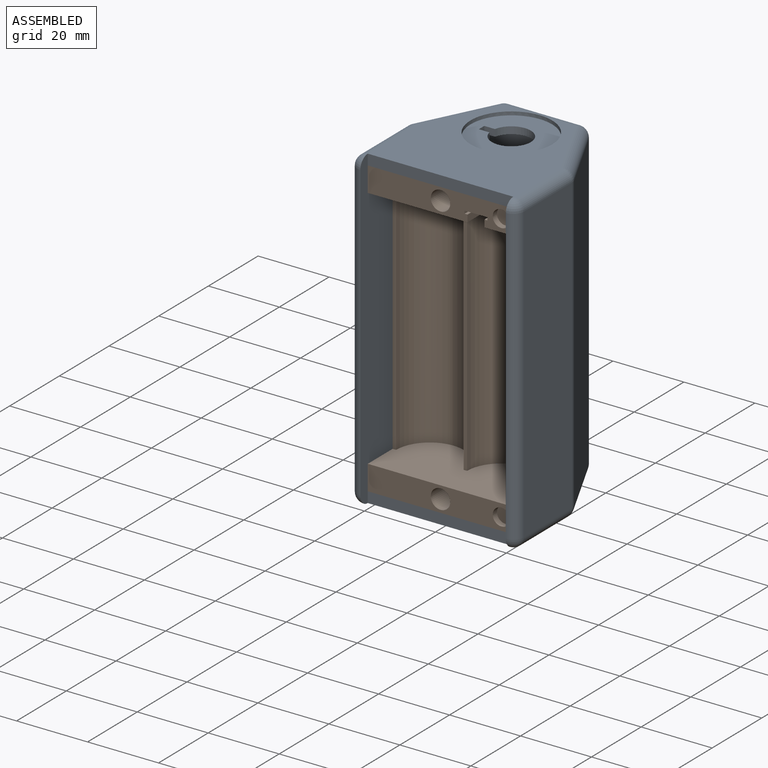
[diagram: assembled view]
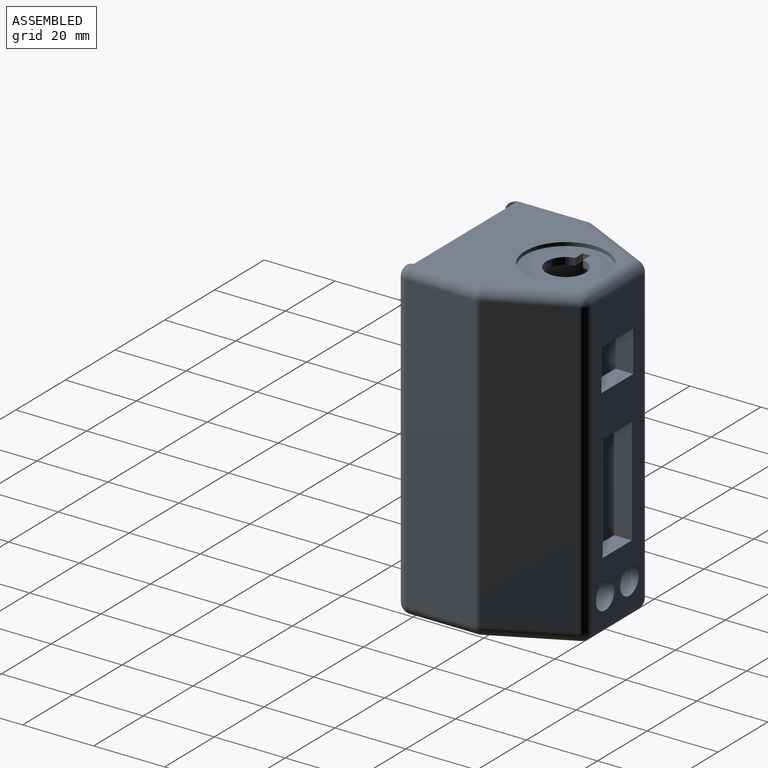
[diagram: assembled view, second angle]
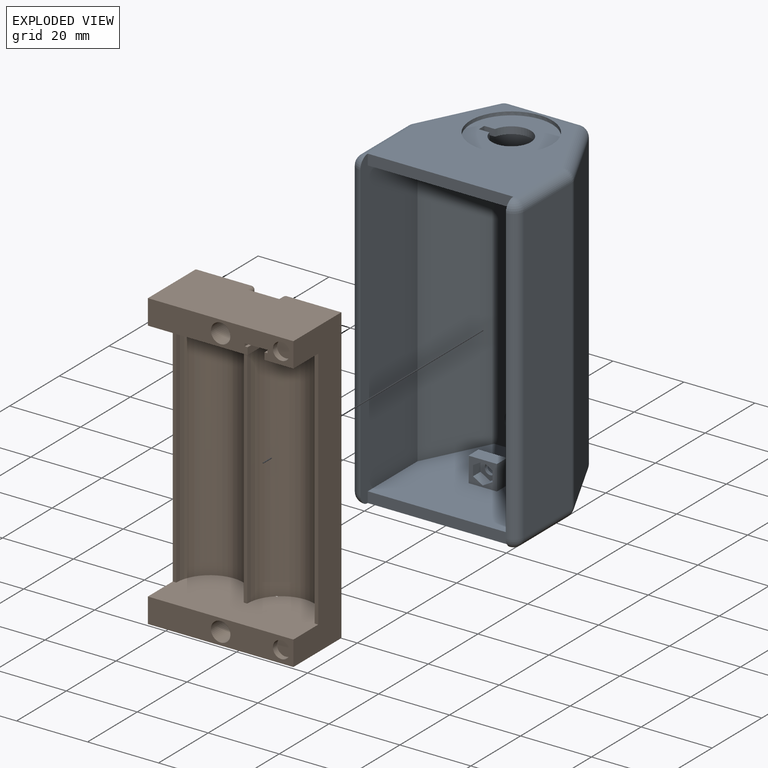
[diagram: exploded view]
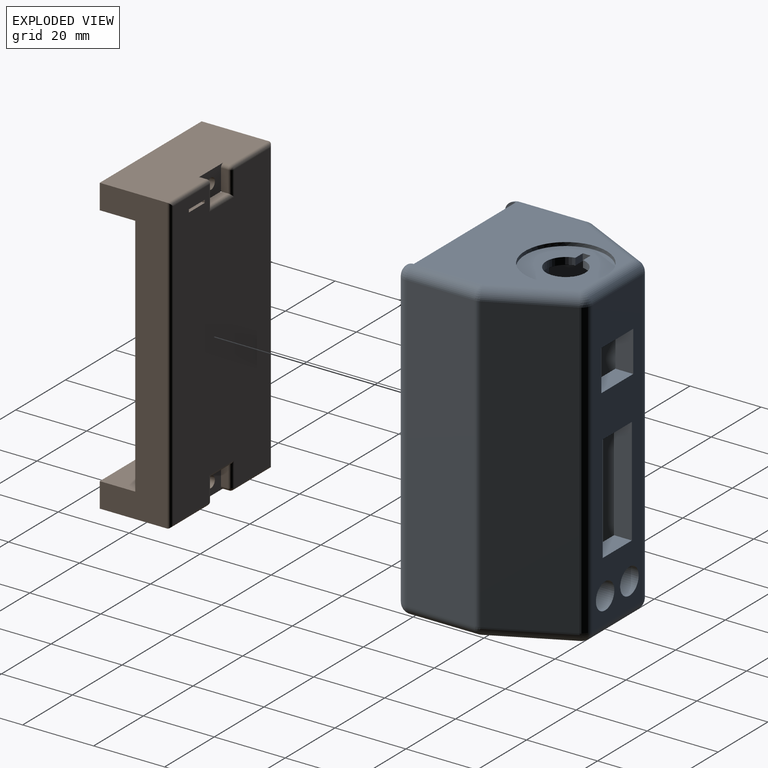
[diagram: exploded view, second angle]
ASSEMBLY  parts=2 mates=3
PART A: 89 faces, bbox 47x46x89 mm
  f0: plane 8x7mm, normal (0,-1,0), area 31.5mm2, adj f28,f70,f71,f72,f81,f82,f83,f84
  f1: plane 41x38mm, normal (0,0,-1), area 1262.5mm2, adj f2,f3,f4,f5,f6,f46,f60,f61
  f2: plane 83x23mm, normal (0,-1,0), area 1303.9mm2, adj f1,f4,f5,f7,f15,f16,f17,f18
  f3: plane 89x23mm, normal (1,0,0), area 1923.1mm2, adj f1,f4,f27,f28,f44,f45,f46,f57
  f4: plane 83x18mm, normal (0.89,-0.45,0), area 1670.3mm2, adj f1,f2,f3,f28
  f5: plane 83x18mm, normal (-0.89,-0.45,0), area 1670.3mm2, adj f1,f2,f6,f28
  f6: plane 89x23mm, normal (-1,0,0), area 1923.1mm2, adj f1,f5,f27,f28,f29,f30,f46,f47
  f7: plane 11.7x5mm, normal (0,0,-1), area 23.7mm2, adj f2,f8,f15,f17,f25,f26
  f8: plane 83x20.29mm, normal (0,1,0), area 1097.7mm2, adj f7,f15,f16,f17,f18,f19,f20,f21
  f9: plane 83x19.29mm, normal (1,0,0), area 1601.2mm2, adj f29,f31,f32,f48
  f10: plane 83x20.71mm, normal (0.89,0.45,0), area 1921.7mm2, adj f32,f34,f35,f50
  f11: plane 83x20.71mm, normal (-0.89,0.45,0), area 1921.7mm2, adj f38,f40,f41,f54
  f12: plane 83x19.29mm, normal (-1,0,0), area 1601.2mm2, adj f41,f43,f45,f56
  f13: plane 41x40mm, normal (0,0,1), area 1010.1mm2, adj f46,f48,f50,f52,f54,f56,f58
  f14: plane 41x40mm, normal (0,0,-1), area 1425.6mm2, adj f27,f31,f34,f37,f40,f43
  f15: plane 31.8x5mm, normal (-1,0,0), area 155.8mm2, adj f2,f7,f8,f16,f24,f26
  f16: plane 11.7x5mm, normal (0,0,1), area 58.5mm2, adj f2,f8,f15,f17
  f17: plane 30.2x5mm, normal (1,0,0), area 151mm2, adj f2,f7,f8,f16
  f18: cylinder r=3.7mm len=7.4mm, axis (0,1,0), area 116.2mm2, adj f2,f8
  f19: cylinder r=3.7mm len=7.4mm, axis (0,1,0), area 116.2mm2, adj f2,f8
  f20: plane 12.8x5mm, normal (0,0,-1), area 64mm2, adj f2,f8,f21,f23
  f21: plane 11.5x5mm, normal (-1,0,0), area 57.5mm2, adj f2,f8,f20,f22
  f22: plane 12.8x5mm, normal (0,0,1), area 64mm2, adj f2,f8,f21,f23
  f23: plane 11.5x5mm, normal (1,0,0), area 57.5mm2, adj f2,f8,f20,f22
  f24: plane 11.6x3mm, normal (0,0,-1), area 34.8mm2, adj f2,f15,f25,f26
  f25: plane 3x1.6mm, normal (1,0,0), area 4.8mm2, adj f2,f7,f24,f26
  f26: plane 11.6x1.6mm, normal (0,-1,0), area 18.6mm2, adj f7,f15,f24,f25
  f27: plane 41x3mm, normal (0,-1,0), area 123mm2, adj f3,f6,f14,f28
  f28: plane 41x38mm, normal (0,0,1), area 1364mm2, adj f0,f2,f3,f4,f5,f6,f27,f69
  f29: cylinder r=3mm len=83mm, axis (0,0,-1), area 391.1mm2, adj f6,f9,f30,f47
  f30: sphere r=3mm, area 14.1mm2, adj f6,f29,f31
  f31: cylinder r=3mm len=19.29mm, axis (0,1,0), area 90.9mm2, adj f9,f14,f30,f33
  f32: cylinder r=3mm len=83mm, axis (0,0,1), area 115.4mm2, adj f9,f10,f33,f49
  f33: sphere r=3mm, area 4.2mm2, adj f31,f32,f34
  f34: cylinder r=3mm len=22.05mm, axis (-0.45,0.89,0), area 109.1mm2, adj f10,f14,f33,f36
  f35: cylinder r=3mm len=83mm, axis (0,0,-1), area 275.7mm2, adj f8,f10,f36,f51
  f36: sphere r=3mm, area 10mm2, adj f34,f35,f37
  f37: cylinder r=3mm len=20.29mm, axis (-1,0,0), area 95.6mm2, adj f8,f14,f36,f39
  f38: cylinder r=3mm len=83mm, axis (0,0,-1), area 275.7mm2, adj f8,f11,f39,f53
  f39: sphere r=3mm, area 10mm2, adj f37,f38,f40
  f40: cylinder r=3mm len=22.05mm, axis (-0.45,-0.89,0), area 109.1mm2, adj f11,f14,f39,f42
  f41: cylinder r=3mm len=83mm, axis (0,0,1), area 115.4mm2, adj f11,f12,f42,f55
  f42: sphere r=3mm, area 4.2mm2, adj f40,f41,f43
  f43: cylinder r=3mm len=19.29mm, axis (0,-1,0), area 90.9mm2, adj f12,f14,f42,f44
  f44: sphere r=3mm, area 14.1mm2, adj f3,f43,f45
  f45: cylinder r=3mm len=83mm, axis (0,0,-1), area 391.1mm2, adj f3,f12,f44,f57
  f46: plane 41x3mm, normal (0,-1,0), area 123mm2, adj f1,f3,f6,f13
  f47: sphere r=3mm, area 14.1mm2, adj f6,f29,f48
  f48: cylinder r=3mm len=19.29mm, axis (0,-1,0), area 90.9mm2, adj f9,f13,f47,f49
  f49: sphere r=3mm, area 4.2mm2, adj f32,f48,f50
  f50: cylinder r=3mm len=22.05mm, axis (0.45,-0.89,0), area 109.1mm2, adj f10,f13,f49,f51
  f51: sphere r=3mm, area 10mm2, adj f35,f50,f52
  f52: cylinder r=3mm len=20.29mm, axis (1,0,0), area 95.6mm2, adj f8,f13,f51,f53
  f53: sphere r=3mm, area 10mm2, adj f38,f52,f54
  f54: cylinder r=3mm len=22.05mm, axis (0.45,0.89,0), area 109.1mm2, adj f11,f13,f53,f55
  f55: sphere r=3mm, area 4.2mm2, adj f41,f54,f56
  f56: cylinder r=3mm len=19.29mm, axis (0,1,0), area 90.9mm2, adj f12,f13,f55,f57
  f57: sphere r=3mm, area 14.1mm2, adj f3,f45,f56
  f58: cylinder r=11.5mm len=23mm, axis (0,0,1), area 72.3mm2, adj f13,f59
  f59: plane 23x23mm, normal (0,0,1), area 314mm2, adj f58,f60,f61,f62,f63
  f60: plane 3x2mm, normal (0,1,0), area 6mm2, adj f1,f59,f61,f63
  f61: cylinder r=5.5mm len=11mm, axis (0,0,1), area 64.7mm2, adj f1,f59,f60,f62
  f62: plane 3x2mm, normal (0,-1,0), area 6mm2, adj f1,f59,f61,f63
  f63: plane 2.2x2mm, normal (1,0,0), area 4.4mm2, adj f1,f59,f60,f62
  f64: plane 8x7mm, normal (0,-1,0), area 31.5mm2, adj f1,f65,f67,f68,f73,f74,f75,f76
  f65: plane 7x4mm, normal (-1,0,0), area 28mm2, adj f1,f64,f66,f68
  f66: plane 8x7mm, normal (0,1,0), area 48.5mm2, adj f1,f65,f67,f68,f80
  f67: plane 7x4mm, normal (1,0,0), area 28mm2, adj f1,f64,f66,f68
  f68: plane 8x4mm, normal (0,0,-1), area 32mm2, adj f64,f65,f66,f67
  f69: plane 8x7mm, normal (0,1,0), area 48.5mm2, adj f28,f70,f71,f72,f88
  f70: plane 7x4mm, normal (-1,0,0), area 28mm2, adj f0,f28,f69,f72
  f71: plane 7x4mm, normal (1,0,0), area 28mm2, adj f0,f28,f69,f72
  f72: plane 8x4mm, normal (0,0,1), area 32mm2, adj f0,f69,f70,f71
  f73: plane 2.87x2.5mm, normal (1,0,0), area 7.2mm2, adj f64,f74,f78,f79
  f74: plane 2.75x2.5mm, normal (0.5,0,0.87), area 7.9mm2, adj f64,f73,f75,f79
  f75: plane 2.75x2.5mm, normal (-0.5,0,0.87), area 7.9mm2, adj f64,f74,f76,f79
  f76: plane 2.87x2.5mm, normal (-1,0,0), area 7.2mm2, adj f64,f75,f77,f79
  f77: plane 2.75x2.5mm, normal (-0.5,0,-0.87), area 7.9mm2, adj f64,f76,f78,f79
  f78: plane 2.75x2.5mm, normal (0.5,0,-0.87), area 7.9mm2, adj f64,f73,f77,f79
  f79: plane 6.05x5.5mm, normal (0,-1,0), area 17mm2, adj f73,f74,f75,f76,f77,f78,f80
  f80: cylinder r=1.55mm len=3.1mm, axis (0,-1,0), area 14.6mm2, adj f66,f79
  f81: plane 3x2.75mm, normal (-0.5,0,-0.87), area 9.5mm2, adj f0,f82,f86,f87
  f82: plane 3x2.75mm, normal (0.5,0,-0.87), area 9.5mm2, adj f0,f81,f83,f87
  f83: plane 3x2.87mm, normal (1,0,0), area 8.6mm2, adj f0,f82,f84,f87
  f84: plane 3x2.75mm, normal (0.5,0,0.87), area 9.5mm2, adj f0,f83,f85,f87
  f85: plane 3x2.75mm, normal (-0.5,0,0.87), area 9.5mm2, adj f0,f84,f86,f87
  f86: plane 3x2.87mm, normal (-1,0,0), area 8.6mm2, adj f0,f81,f85,f87
  f87: plane 6.05x5.5mm, normal (0,-1,0), area 17mm2, adj f81,f82,f83,f84,f85,f86,f88
  f88: cylinder r=1.55mm len=3.1mm, axis (0,-1,0), area 9.7mm2, adj f69,f87
PART B: 59 faces, bbox 41x20x83 mm
  f0: plane 41x19.5mm, normal (0,0,-1), area 635.8mm2, adj f3,f8,f10,f12,f13,f14,f15,f16
  f1: plane 20x6.4mm, normal (0,0,1), area 70.4mm2, adj f2,f3,f53,f54,f56,f57,f58
  f2: plane 81x39mm, normal (0,1,0), area 3013.9mm2, adj f1,f33,f34,f35,f36,f37,f38,f41
  f3: plane 41x7mm, normal (0,-1,0), area 230.6mm2, adj f0,f1,f5,f8,f10,f17,f21,f53
  f4: plane 41x19.5mm, normal (0,0,1), area 693.4mm2, adj f8,f9,f10,f12,f13,f14,f15,f16
  f5: plane 41x19mm, normal (0,0,1), area 759mm2, adj f3,f8,f10,f32,f33,f38,f39,f45
  f6: cylinder r=1.55mm len=3.1mm, axis (0,-1,0), area 29.2mm2, adj f18,f32
  f7: cylinder r=1.55mm len=3.1mm, axis (0,-1,0), area 29.2mm2, adj f20,f28
  f8: plane 83x19mm, normal (-1,0,0), area 887mm2, adj f0,f3,f4,f5,f9,f11,f16,f37
  f9: plane 41x7mm, normal (0,-1,0), area 245.3mm2, adj f4,f8,f10,f11,f19,f23
  f10: plane 83x19mm, normal (1,0,0), area 887mm2, adj f0,f3,f4,f5,f9,f11,f15,f34
  f11: plane 41x19mm, normal (0,0,-1), area 759mm2, adj f8,f9,f10,f28,f35,f36,f46,f52
  f12: cylinder r=9.5mm len=69mm, axis (0,0,-1), area 2059.3mm2, adj f0,f4,f13,f16,f25,f29
  f13: plane 69x1mm, normal (0,-1,0), area 69mm2, adj f0,f4,f12,f14
  f14: cylinder r=9.5mm len=69mm, axis (0,0,-1), area 2059.3mm2, adj f0,f4,f13,f15,f25,f29
  f15: plane 69x1mm, normal (0,-1,0), area 69mm2, adj f0,f4,f10,f14
  f16: plane 69x1mm, normal (0,-1,0), area 69mm2, adj f0,f4,f8,f12
  f17: cylinder r=2.75mm len=14mm, axis (0,-1,0), area 241.9mm2, adj f3,f18
  f18: plane 5.5x5.5mm, normal (0,-1,0), area 16.2mm2, adj f6,f17
  f19: cylinder r=2.75mm len=14mm, axis (0,-1,0), area 241.9mm2, adj f9,f20
  f20: plane 5.5x5.5mm, normal (0,-1,0), area 16.2mm2, adj f7,f19
  f21: cylinder r=2.39mm len=4.78mm, axis (0,-1,0), area 25.5mm2, adj f3,f22
  f22: plane 4.78x4.78mm, normal (0,-1,0), area 17.9mm2, adj f21
  f23: cylinder r=2.39mm len=4.78mm, axis (0,-1,0), area 25.5mm2, adj f9,f24
  f24: plane 4.78x4.78mm, normal (0,-1,0), area 17.9mm2, adj f23
  f25: plane 8x2mm, normal (0,0,-1), area 15.8mm2, adj f12,f14,f26,f27,f28,f49
  f26: plane 6x2mm, normal (-1,0,0), area 12mm2, adj f4,f25,f28,f50,f52
  f27: plane 6x2mm, normal (1,0,0), area 12mm2, adj f4,f25,f28,f46,f48
  f28: plane 10x7mm, normal (0,1,0), area 48.9mm2, adj f4,f7,f11,f25,f26,f27,f46,f52
  f29: plane 8x2mm, normal (0,0,1), area 15.8mm2, adj f12,f14,f30,f31,f32,f42
  f30: plane 6x2mm, normal (-1,0,0), area 12mm2, adj f0,f29,f32,f39,f41
  f31: plane 6x2mm, normal (1,0,0), area 12mm2, adj f0,f29,f32,f43,f45
  f32: plane 10x7mm, normal (0,1,0), area 48.9mm2, adj f0,f5,f6,f29,f30,f31,f39,f45
  f33: cylinder r=1mm len=15.5mm, axis (1,0,0), area 23.8mm2, adj f2,f5,f34,f40
  f34: cylinder r=1mm len=83mm, axis (0,0,-1), area 129.2mm2, adj f2,f10,f33,f35
  f35: cylinder r=1mm len=15.5mm, axis (-1,0,0), area 23.8mm2, adj f2,f11,f34,f51
  f36: cylinder r=1mm len=15.5mm, axis (-1,0,0), area 23.8mm2, adj f2,f11,f37,f47
  f37: cylinder r=1mm len=83mm, axis (0,0,1), area 129.2mm2, adj f2,f8,f36,f38
  f38: cylinder r=1mm len=15.5mm, axis (1,0,0), area 23.8mm2, adj f2,f5,f37,f44
  f39: cylinder r=1mm len=2mm, axis (0,-1,0), area 3.1mm2, adj f5,f30,f32,f40
  f40: sphere r=1mm, area 1.6mm2, adj f33,f39,f41
  f41: cylinder r=1mm len=7mm, axis (0,0,1), area 10mm2, adj f2,f30,f40,f42
  f42: cylinder r=1mm len=10mm, axis (1,0,0), area 13.7mm2, adj f2,f29,f41,f43
  f43: cylinder r=1mm len=7mm, axis (0,0,-1), area 10mm2, adj f2,f31,f42,f44
  f44: sphere r=1mm, area 1.6mm2, adj f38,f43,f45
  f45: cylinder r=1mm len=2mm, axis (0,1,0), area 3.1mm2, adj f5,f31,f32,f44
  f46: cylinder r=1mm len=2mm, axis (0,-1,0), area 3.1mm2, adj f11,f27,f28,f47
  f47: sphere r=1mm, area 1.6mm2, adj f36,f46,f48
  f48: cylinder r=1mm len=7mm, axis (0,0,-1), area 10mm2, adj f2,f27,f47,f49
  f49: cylinder r=1mm len=10mm, axis (-1,0,0), area 13.7mm2, adj f2,f25,f48,f50
  f50: cylinder r=1mm len=7mm, axis (0,0,1), area 10mm2, adj f2,f26,f49,f51
  f51: sphere r=1mm, area 1.6mm2, adj f35,f50,f52
  f52: cylinder r=1mm len=2mm, axis (0,1,0), area 3.1mm2, adj f11,f26,f28,f51
  f53: plane 20x0.8mm, normal (1,0,0), area 16mm2, adj f1,f2,f3,f55
  f54: plane 20x0.8mm, normal (-1,0,0), area 16mm2, adj f1,f2,f3,f55
  f55: plane 20x6.4mm, normal (0,0,-1), area 128mm2, adj f2,f3,f53,f54
  f56: plane 12x2mm, normal (1,0,0), area 24mm2, adj f0,f1,f3,f57
  f57: plane 4.8x2mm, normal (0,-1,0), area 9.6mm2, adj f0,f1,f56,f58
  f58: plane 12x2mm, normal (-1,0,0), area 24mm2, adj f0,f1,f3,f57
PLACE A t=(-57.72,-118.94,-43.31)mm
PLACE B t=(-59.3,-108.94,-40.31)mm
MATE planar A.f88 <-> B.f28  axis (0,-1,0) through (-59.3,-101.94,-36.81)mm
MATE planar A.f1 <-> B.f5  axis (0,0,-1) through (-59.26,-102.37,42.69)mm
MATE planar B.f8 <-> A.f3  axis (-1,0,0) through (-79.8,-105.94,1.19)mm
